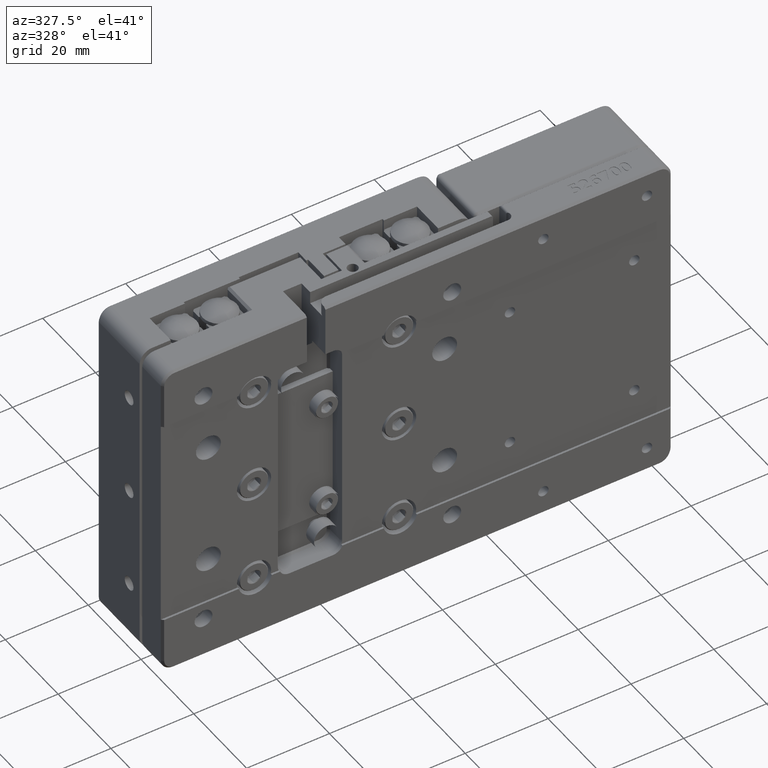
[diagram: clean part render]
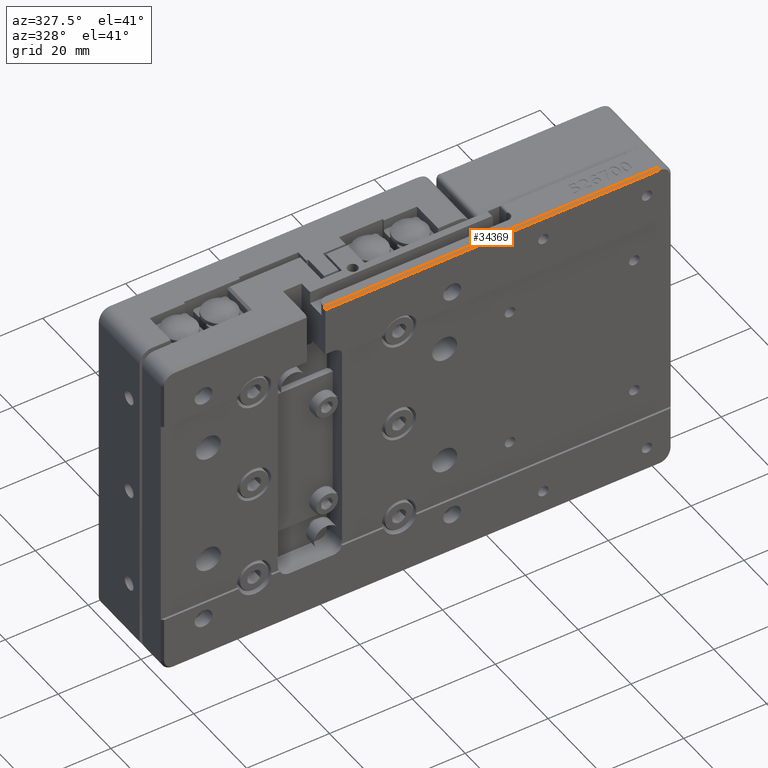
[diagram: same view with one face highlighted and labeled with its STEP entity id]
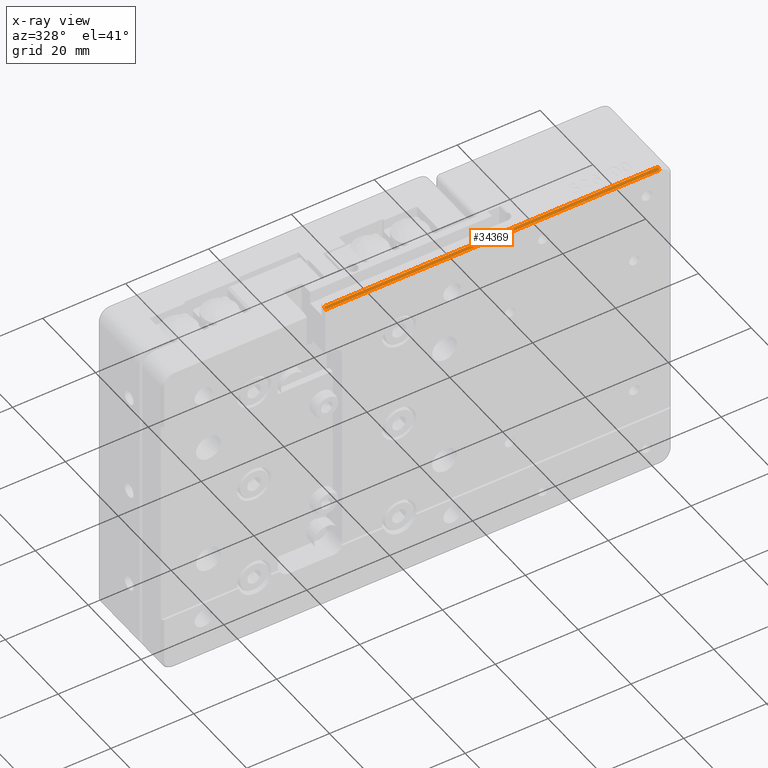
[diagram: x-ray of the same camera — body ghosted, the highlighted face saturated]
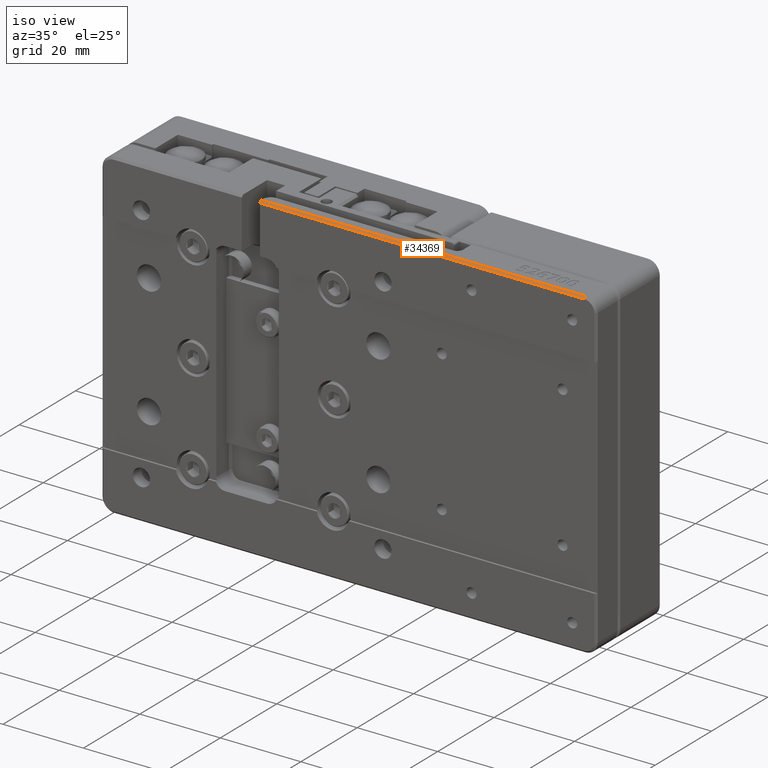
[diagram: same view with one face highlighted and labeled with its STEP entity id]
A machine part, auxiliary view. The second image highlights one B-rep face of the part: STEP entity #34369.
The next image is the same camera in x-ray: the body ghosted, the highlighted face saturated — about 0% of this face is hidden behind the body in this view.
A second angle (iso view) of the same face is appended — the face is thin or edge-on in the first view.
In plain terms, the highlighted planar face has unit normal (0, -0.7071, 0.7071).
Its self-contained STEP definition (entity closure, byte-faithful):
#185 = B_SPLINE_CURVE_WITH_KNOTS ( 'NONE', 3,
 ( #53422, #48342, #13131, #23262 ),
 .UNSPECIFIED., .F., .F.,
 ( 4, 4 ),
 ( 0.0000000000000000000, 1.000000000000000000 ),
 .UNSPECIFIED. ) ;
#1226 = DIRECTION ( 'NONE',  ( 0.0000000000000000000, -0.7071058009853911100, -0.7071077613863452300 ) ) ;
#2712 = CARTESIAN_POINT ( 'NONE',  ( 79.99999999917538700, -7.499996628292279000, 40.00001344084173400 ) ) ;
#3102 = B_SPLINE_CURVE_WITH_KNOTS ( 'NONE', 3,
 ( #37802, #57817, #32930, #2712 ),
 .UNSPECIFIED., .F., .F.,
 ( 4, 4 ),
 ( 0.0000000000000000000, 1.000000000000000000 ),
 .UNSPECIFIED. ) ;
#3864 = ORIENTED_EDGE ( 'NONE', *, *, #63821, .F. ) ;
#4512 = EDGE_CURVE ( 'NONE', #28699, #46799, #185, .T. ) ;
#7984 = AXIS2_PLACEMENT_3D ( 'NONE', #44763, #14595, #49784 ) ;
#9117 = ORIENTED_EDGE ( 'NONE', *, *, #58594, .T. ) ;
#9525 = PLANE ( 'NONE',  #7984 ) ;
#13131 = CARTESIAN_POINT ( 'NONE',  ( 26.26666666557245100, -7.499996764659910800, 40.00000323534342800 ) ) ;
#14595 = DIRECTION ( 'NONE',  ( 0.0000000000000000000, -0.7071067811912599100, 0.7071067811818352300 ) ) ;
#14730 = CARTESIAN_POINT ( 'NONE',  ( 79.99999999835057500, -8.000009446000396100, 39.50000517912418700 ) ) ;
#16627 = VECTOR ( 'NONE', #1226, 999.9999999999998900 ) ;
#16685 = CARTESIAN_POINT ( 'NONE',  ( 79.99999999917538700, -7.499996628292279000, 40.00001344084173400 ) ) ;
#19043 = CARTESIAN_POINT ( 'NONE',  ( -0.5999999999999982000, -7.500001039657886000, 39.99999982672433400 ) ) ;
#21408 = FACE_OUTER_BOUND ( 'NONE', #49670, .T. ) ;
#23262 = CARTESIAN_POINT ( 'NONE',  ( -0.5999999999999982000, -7.500001039657886000, 39.99999982672433400 ) ) ;
#26774 = EDGE_CURVE ( 'NONE', #36717, #28699, #3102, .T. ) ;
#28699 = VERTEX_POINT ( 'NONE', #16685 ) ;
#29969 = LINE ( 'NONE', #46429, #16627 ) ;
#32930 = CARTESIAN_POINT ( 'NONE',  ( 79.99999999671733500, -7.666659272226543600, 39.83334072777456900 ) ) ;
#34369 = ADVANCED_FACE ( 'NONE', ( #21408 ), #9525, .T. ) ;
#34592 = DIRECTION ( 'NONE',  ( -1.000000000000000000, -0.0000000000000000000, -0.0000000000000000000 ) ) ;
#35431 = VECTOR ( 'NONE', #34592, 1000.000000000000000 ) ;
#36054 = ORIENTED_EDGE ( 'NONE', *, *, #26774, .T. ) ;
#36717 = VERTEX_POINT ( 'NONE', #14730 ) ;
#37802 = CARTESIAN_POINT ( 'NONE',  ( 79.99999999835057500, -8.000009446000396100, 39.50000517912418700 ) ) ;
#44763 = CARTESIAN_POINT ( 'NONE',  ( -39.34000000000000300, -7.374712549164998500, 40.12528745084000500 ) ) ;
#46429 = CARTESIAN_POINT ( 'NONE',  ( -0.6000000000000000900, -7.500001386209224700, 40.00000000000055400 ) ) ;
#46799 = VERTEX_POINT ( 'NONE', #19043 ) ;
#47249 = LINE ( 'NONE', #64806, #35431 ) ;
#48036 = ORIENTED_EDGE ( 'NONE', *, *, #4512, .T. ) ;
#48342 = CARTESIAN_POINT ( 'NONE',  ( 53.13333333114489700, -7.499992836213820600, 40.00000716378951200 ) ) ;
#49670 = EDGE_LOOP ( 'NONE', ( #9117, #3864, #36054, #48036 ) ) ;
#49784 = DIRECTION ( 'NONE',  ( 0.0000000000000000000, -0.7071067811818352300, -0.7071067811912599100 ) ) ;
#53422 = CARTESIAN_POINT ( 'NONE',  ( 79.99999999917538700, -7.499996628292279000, 40.00001344084173400 ) ) ;
#57817 = CARTESIAN_POINT ( 'NONE',  ( 79.99999999671733500, -7.833329636685355100, 39.66667036331353600 ) ) ;
#58594 = EDGE_CURVE ( 'NONE', #46799, #62192, #29969, .T. ) ;
#59613 = CARTESIAN_POINT ( 'NONE',  ( -0.5999999999999975400, -7.999999563270840500, 39.50000218364590400 ) ) ;
#62192 = VERTEX_POINT ( 'NONE', #59613 ) ;
#63821 = EDGE_CURVE ( 'NONE', #36717, #62192, #47249, .T. ) ;
#64806 = CARTESIAN_POINT ( 'NONE',  ( -41.93999999999999100, -8.000000000000000000, 39.50000262037384900 ) ) ;